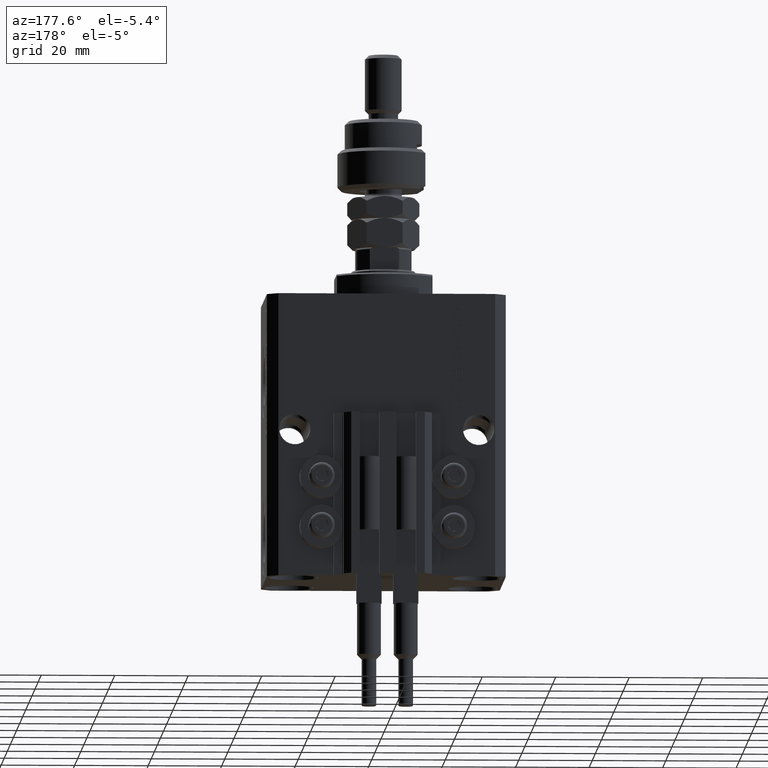
[diagram: clean part render]
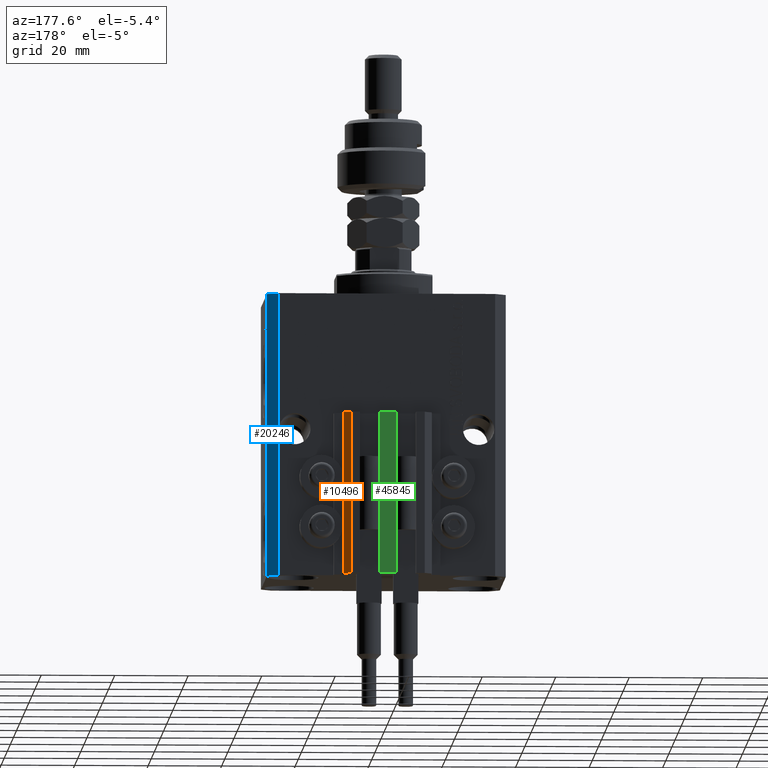
[diagram: same view with three faces highlighted in distinct colors, each labeled with its STEP entity id]
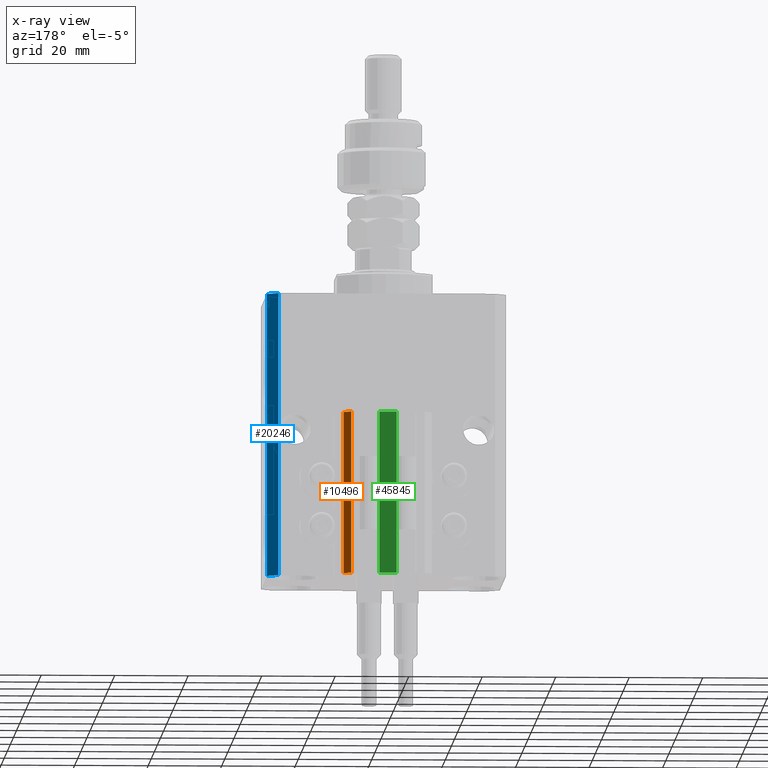
[diagram: x-ray of the same camera — body ghosted, the three highlighted faces saturated]
A machine part, auxiliary view with three faces highlighted in distinct colors.
The next image is the same camera in x-ray (body ghosted, the three faces saturated) — at least one of them is partly hidden behind the body in this view.
Their STEP definitions:

[orange] entity #10496 — the highlighted planar face has unit normal (0.7071, 0.7071, 0).
#702 = CARTESIAN_POINT ( 'NONE',  ( 12.00000000000000178, 28.49999999999950973, -77.00000000000000000 ) ) ;
#735 = VECTOR ( 'NONE', #1447, 1000.000000000000000 ) ;
#1447 = DIRECTION ( 'NONE',  ( 0.000000000000000000, 0.000000000000000000, 1.000000000000000000 ) ) ;
#6008 = CARTESIAN_POINT ( 'NONE',  ( 9.999999999999994671, 30.49999999999949551, -33.00000000000000000 ) ) ;
#7335 = EDGE_LOOP ( 'NONE', ( #24533, #14595, #40905, #7437 ) ) ;
#7437 = ORIENTED_EDGE ( 'NONE', *, *, #22223, .T. ) ;
#7446 = LINE ( 'NONE', #23301, #735 ) ;
#8081 = VECTOR ( 'NONE', #14420, 1000.000000000000000 ) ;
#9543 = DIRECTION ( 'NONE',  ( 0.7071067811865442421, 0.7071067811865509034, -0.000000000000000000 ) ) ;
#10153 = CARTESIAN_POINT ( 'NONE',  ( 12.00000000000000178, 28.49999999999950973, -33.00000000000000000 ) ) ;
#10481 = VECTOR ( 'NONE', #24095, 1000.000000000000000 ) ;
#10496 = ADVANCED_FACE ( 'NONE', ( #29031 ), #25141, .T. ) ;
#14420 = DIRECTION ( 'NONE',  ( -0.7071067811865507924, 0.7071067811865441310, 0.000000000000000000 ) ) ;
#14595 = ORIENTED_EDGE ( 'NONE', *, *, #28831, .F. ) ;
#14675 = LINE ( 'NONE', #22476, #8081 ) ;
#15535 = LINE ( 'NONE', #38388, #42020 ) ;
#15783 = LINE ( 'NONE', #31888, #10481 ) ;
#17224 = VERTEX_POINT ( 'NONE', #24386 ) ;
#18249 = VERTEX_POINT ( 'NONE', #702 ) ;
#19163 = DIRECTION ( 'NONE',  ( 0.000000000000000000, 0.000000000000000000, 1.000000000000000000 ) ) ;
#21436 = EDGE_CURVE ( 'NONE', #18249, #17224, #15783, .T. ) ;
#22223 = EDGE_CURVE ( 'NONE', #17224, #49326, #15535, .T. ) ;
#22476 = CARTESIAN_POINT ( 'NONE',  ( 12.00000000000000178, 28.49999999999950973, -33.00000000000000000 ) ) ;
#23301 = CARTESIAN_POINT ( 'NONE',  ( 12.00000000000000178, 28.49999999999950973, -77.00000000000000000 ) ) ;
#23489 = AXIS2_PLACEMENT_3D ( 'NONE', #29290, #9543, #37339 ) ;
#24095 = DIRECTION ( 'NONE',  ( -0.7071067811865507924, 0.7071067811865441310, 0.000000000000000000 ) ) ;
#24386 = CARTESIAN_POINT ( 'NONE',  ( 9.999999999999994671, 30.49999999999949551, -77.00000000000000000 ) ) ;
#24533 = ORIENTED_EDGE ( 'NONE', *, *, #25730, .F. ) ;
#25141 = PLANE ( 'NONE',  #23489 ) ;
#25730 = EDGE_CURVE ( 'NONE', #34339, #49326, #14675, .T. ) ;
#28831 = EDGE_CURVE ( 'NONE', #18249, #34339, #7446, .T. ) ;
#29031 = FACE_OUTER_BOUND ( 'NONE', #7335, .T. ) ;
#29290 = CARTESIAN_POINT ( 'NONE',  ( 12.00000000000000178, 28.49999999999950973, -77.00000000000000000 ) ) ;
#31888 = CARTESIAN_POINT ( 'NONE',  ( 12.00000000000000178, 28.49999999999950973, -77.00000000000000000 ) ) ;
#34339 = VERTEX_POINT ( 'NONE', #10153 ) ;
#37339 = DIRECTION ( 'NONE',  ( -0.7071067811865507924, 0.7071067811865441310, 0.000000000000000000 ) ) ;
#38388 = CARTESIAN_POINT ( 'NONE',  ( 9.999999999999994671, 30.49999999999949551, -77.00000000000000000 ) ) ;
#40905 = ORIENTED_EDGE ( 'NONE', *, *, #21436, .T. ) ;
#42020 = VECTOR ( 'NONE', #19163, 1000.000000000000000 ) ;
#49326 = VERTEX_POINT ( 'NONE', #6008 ) ;

[blue] entity #20246 — the highlighted planar face has unit normal (0.7071, 0.7071, 0).
#2036 = CARTESIAN_POINT ( 'NONE',  ( 32.49999999999702993, 19.49999999999945999, -77.00000000000000000 ) ) ;
#3323 = LINE ( 'NONE', #23061, #46322 ) ;
#6428 = LINE ( 'NONE', #2036, #40658 ) ;
#7658 = ORIENTED_EDGE ( 'NONE', *, *, #28519, .F. ) ;
#8948 = CARTESIAN_POINT ( 'NONE',  ( 29.49999999999707967, 22.49999999999951328, -77.00000000000000000 ) ) ;
#9474 = VERTEX_POINT ( 'NONE', #8948 ) ;
#9585 = AXIS2_PLACEMENT_3D ( 'NONE', #19345, #51028, #35195 ) ;
#11018 = CARTESIAN_POINT ( 'NONE',  ( 32.49999999999702993, 19.49999999999945999, -77.00000000000000000 ) ) ;
#14739 = DIRECTION ( 'NONE',  ( 0.000000000000000000, 0.000000000000000000, 1.000000000000000000 ) ) ;
#14898 = LINE ( 'NONE', #34634, #16741 ) ;
#16723 = VERTEX_POINT ( 'NONE', #11018 ) ;
#16741 = VECTOR ( 'NONE', #35164, 1000.000000000000000 ) ;
#19133 = ORIENTED_EDGE ( 'NONE', *, *, #39007, .T. ) ;
#19345 = CARTESIAN_POINT ( 'NONE',  ( 32.49999999999702993, 19.49999999999945999, -77.00000000000000000 ) ) ;
#19900 = VERTEX_POINT ( 'NONE', #27827 ) ;
#20246 = ADVANCED_FACE ( 'NONE', ( #42466 ), #38825, .T. ) ;
#21650 = ORIENTED_EDGE ( 'NONE', *, *, #49675, .F. ) ;
#22765 = VERTEX_POINT ( 'NONE', #29107 ) ;
#23061 = CARTESIAN_POINT ( 'NONE',  ( 32.49999999999702993, 19.49999999999945999, -77.00000000000000000 ) ) ;
#27827 = CARTESIAN_POINT ( 'NONE',  ( 32.49999999999702993, 19.49999999999945999, 0.000000000000000000 ) ) ;
#28519 = EDGE_CURVE ( 'NONE', #16723, #19900, #3323, .T. ) ;
#29107 = CARTESIAN_POINT ( 'NONE',  ( 29.49999999999707967, 22.49999999999951328, 0.000000000000000000 ) ) ;
#30112 = ORIENTED_EDGE ( 'NONE', *, *, #32095, .T. ) ;
#32095 = EDGE_CURVE ( 'NONE', #16723, #9474, #6428, .T. ) ;
#32712 = DIRECTION ( 'NONE',  ( -0.7071067811865352493, 0.7071067811865597852, 0.000000000000000000 ) ) ;
#34634 = CARTESIAN_POINT ( 'NONE',  ( 29.49999999999707967, 22.49999999999951328, -77.00000000000000000 ) ) ;
#35164 = DIRECTION ( 'NONE',  ( 0.000000000000000000, 0.000000000000000000, 1.000000000000000000 ) ) ;
#35195 = DIRECTION ( 'NONE',  ( -0.7071067811865351382, 0.7071067811865598962, 0.000000000000000000 ) ) ;
#38111 = DIRECTION ( 'NONE',  ( -0.7071067811865352493, 0.7071067811865597852, 0.000000000000000000 ) ) ;
#38825 = PLANE ( 'NONE',  #9585 ) ;
#39007 = EDGE_CURVE ( 'NONE', #9474, #22765, #14898, .T. ) ;
#40658 = VECTOR ( 'NONE', #38111, 1000.000000000000000 ) ;
#40760 = LINE ( 'NONE', #48798, #43675 ) ;
#42466 = FACE_OUTER_BOUND ( 'NONE', #44999, .T. ) ;
#43675 = VECTOR ( 'NONE', #32712, 1000.000000000000000 ) ;
#44999 = EDGE_LOOP ( 'NONE', ( #21650, #7658, #30112, #19133 ) ) ;
#46322 = VECTOR ( 'NONE', #14739, 1000.000000000000000 ) ;
#48798 = CARTESIAN_POINT ( 'NONE',  ( 32.49999999999702993, 19.49999999999945999, 0.000000000000000000 ) ) ;
#49675 = EDGE_CURVE ( 'NONE', #19900, #22765, #40760, .T. ) ;
#51028 = DIRECTION ( 'NONE',  ( 0.7071067811865598962, 0.7071067811865351382, -0.000000000000000000 ) ) ;

[green] entity #45845 — the highlighted planar face has unit normal (0, -1, 0).
#637 = DIRECTION ( 'NONE',  ( 0.000000000000000000, -1.000000000000000000, 0.000000000000000000 ) ) ;
#1948 = ORIENTED_EDGE ( 'NONE', *, *, #46800, .F. ) ;
#2427 = VECTOR ( 'NONE', #24091, 1000.000000000000000 ) ;
#3759 = DIRECTION ( 'NONE',  ( 1.000000000000000000, 0.000000000000000000, 0.000000000000000000 ) ) ;
#3840 = LINE ( 'NONE', #31625, #2427 ) ;
#4032 = DIRECTION ( 'NONE',  ( 0.000000000000000000, -0.000000000000000000, -1.000000000000000000 ) ) ;
#6260 = LINE ( 'NONE', #46776, #40376 ) ;
#6675 = ORIENTED_EDGE ( 'NONE', *, *, #49548, .T. ) ;
#6938 = DIRECTION ( 'NONE',  ( 1.000000000000000000, 0.000000000000000000, 0.000000000000000000 ) ) ;
#7287 = DIRECTION ( 'NONE',  ( 0.000000000000000000, 0.000000000000000000, 1.000000000000000000 ) ) ;
#10127 = CARTESIAN_POINT ( 'NONE',  ( 2.349999999999999645, 30.49999999999949907, -77.00000000000000000 ) ) ;
#14993 = EDGE_LOOP ( 'NONE', ( #15431, #21688, #1948, #6675 ) ) ;
#15431 = ORIENTED_EDGE ( 'NONE', *, *, #43470, .T. ) ;
#15436 = CARTESIAN_POINT ( 'NONE',  ( -2.350000000000003197, 30.49999999999949907, -33.00000000000000000 ) ) ;
#16122 = VECTOR ( 'NONE', #3759, 1000.000000000000000 ) ;
#19201 = CARTESIAN_POINT ( 'NONE',  ( -2.350000000000003197, 30.49999999999949907, -77.00000000000000000 ) ) ;
#20372 = FACE_OUTER_BOUND ( 'NONE', #14993, .T. ) ;
#21056 = VECTOR ( 'NONE', #6938, 1000.000000000000000 ) ;
#21688 = ORIENTED_EDGE ( 'NONE', *, *, #32258, .F. ) ;
#23508 = VERTEX_POINT ( 'NONE', #33777 ) ;
#24091 = DIRECTION ( 'NONE',  ( 0.000000000000000000, 0.000000000000000000, 1.000000000000000000 ) ) ;
#28162 = LINE ( 'NONE', #15436, #16122 ) ;
#31625 = CARTESIAN_POINT ( 'NONE',  ( 2.349999999999999645, 30.49999999999949907, -77.00000000000000000 ) ) ;
#32258 = EDGE_CURVE ( 'NONE', #44854, #38417, #3840, .T. ) ;
#33777 = CARTESIAN_POINT ( 'NONE',  ( -2.350000000000003197, 30.49999999999949907, -33.00000000000000000 ) ) ;
#35614 = CARTESIAN_POINT ( 'NONE',  ( 2.349999999999999645, 30.49999999999949907, -33.00000000000000000 ) ) ;
#36222 = PLANE ( 'NONE',  #45089 ) ;
#38417 = VERTEX_POINT ( 'NONE', #35614 ) ;
#40376 = VECTOR ( 'NONE', #7287, 1000.000000000000000 ) ;
#42514 = LINE ( 'NONE', #51073, #21056 ) ;
#43081 = VERTEX_POINT ( 'NONE', #19201 ) ;
#43470 = EDGE_CURVE ( 'NONE', #23508, #38417, #28162, .T. ) ;
#44854 = VERTEX_POINT ( 'NONE', #10127 ) ;
#45089 = AXIS2_PLACEMENT_3D ( 'NONE', #48413, #637, #4032 ) ;
#45845 = ADVANCED_FACE ( 'NONE', ( #20372 ), #36222, .F. ) ;
#46776 = CARTESIAN_POINT ( 'NONE',  ( -2.350000000000003197, 30.49999999999949907, -77.00000000000000000 ) ) ;
#46800 = EDGE_CURVE ( 'NONE', #43081, #44854, #42514, .T. ) ;
#48413 = CARTESIAN_POINT ( 'NONE',  ( -2.350000000000003197, 30.49999999999949907, -77.00000000000000000 ) ) ;
#49548 = EDGE_CURVE ( 'NONE', #43081, #23508, #6260, .T. ) ;
#51073 = CARTESIAN_POINT ( 'NONE',  ( -2.350000000000003197, 30.49999999999949907, -77.00000000000000000 ) ) ;